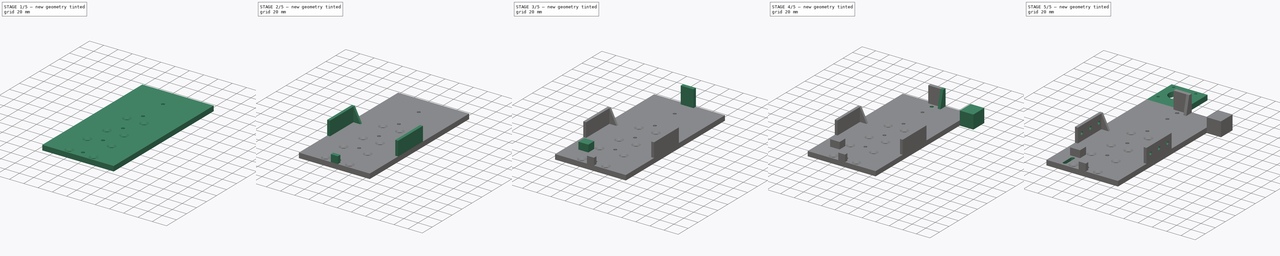
[diagram: build sequence overview — one tinted view per stage of 5, left to right]
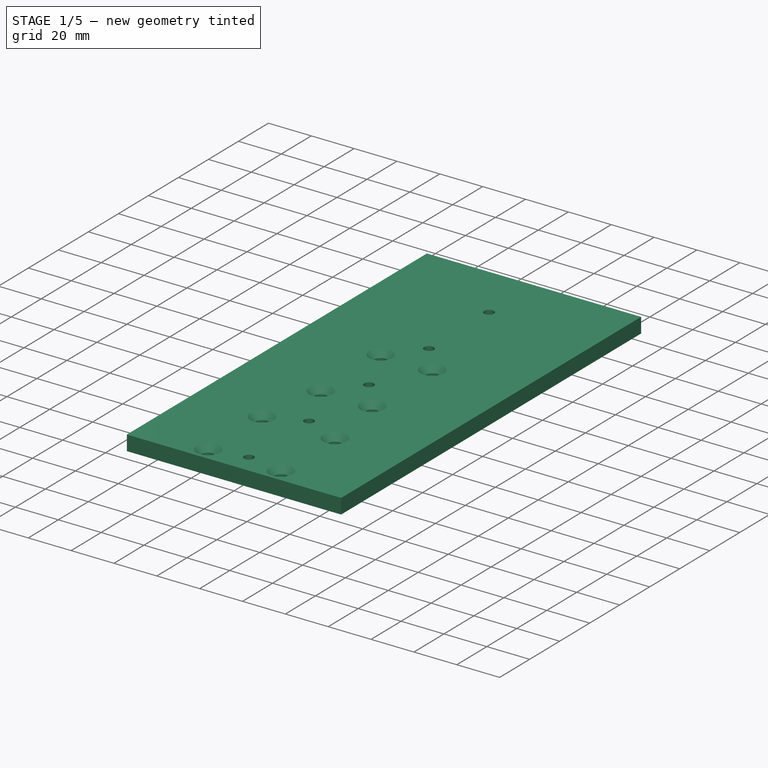
[diagram: stage 1 of 5 — iso view after this stage's code; geometry added in this stage tinted green]
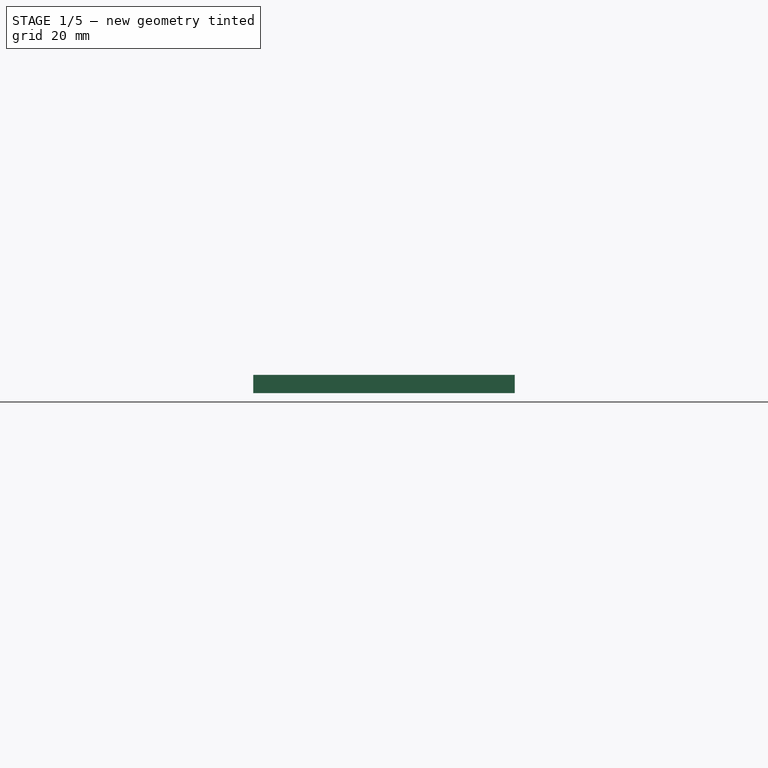
[diagram: stage 1 of 5 — front view after this stage's code; geometry added in this stage tinted green]
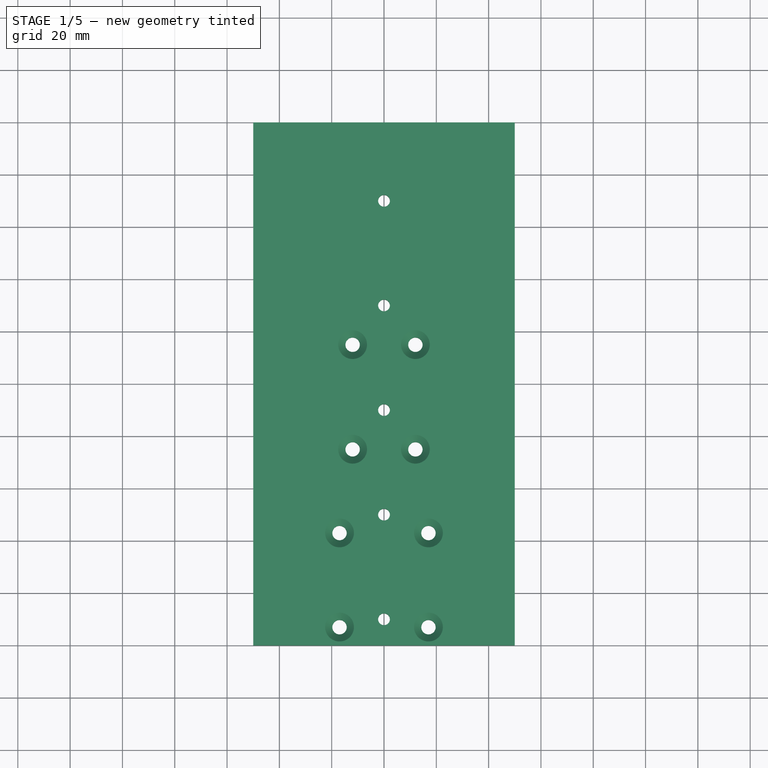
[diagram: stage 1 of 5 — top view after this stage's code; geometry added in this stage tinted green]
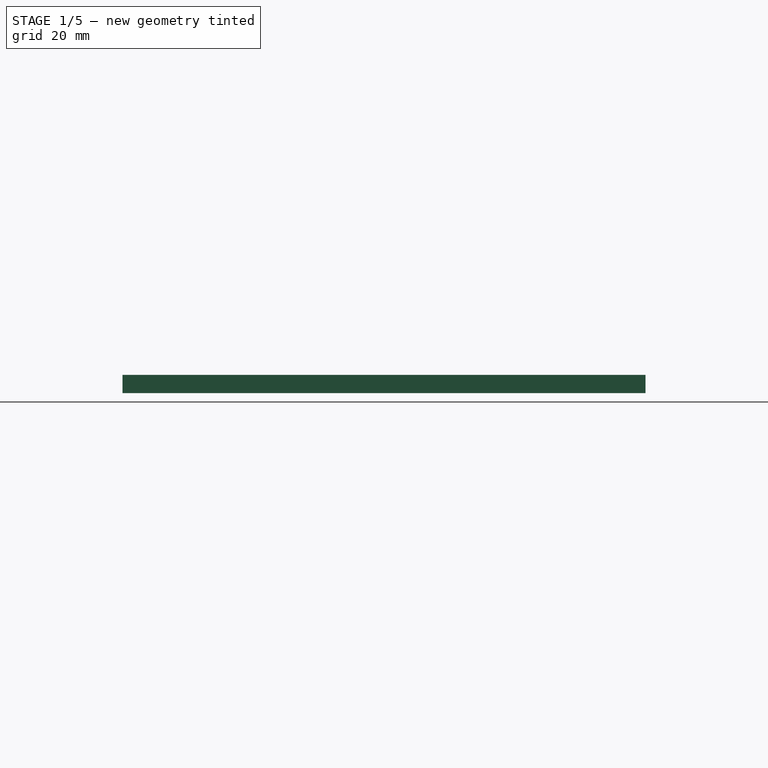
[diagram: stage 1 of 5 — right view after this stage's code; geometry added in this stage tinted green]
FCSTD DOCUMENT  (FreeCAD 0.20R29177 (Git))
Label: ZAxis_v2
License: All rights reserved
LicenseURL: http://en.wikipedia.org/wiki/All_rights_reserved
objects: Sketcher::SketchObject×16, PartDesign::Pad×10, PartDesign::Plane×9, PartDesign::Pocket×4, PartDesign::Hole×2, PartDesign::Body×1
note: 58 computed .brp shape members not serialized (recipe doc carries the construction recipe); baked Part::Feature solids carry a one-line shape summary decoded from their .brp

FEATURE [Sketcher::SketchObject] Sketch
  FullyConstrained = true
  MapMode = 5
  Support = -> [XY_Plane]
  sketch-geometry (4):
    g0: LineSegment StartX=-50 StartY=0 StartZ=0 EndX=50 EndY=0 EndZ=0
    g1: LineSegment StartX=50 StartY=0 StartZ=0 EndX=50 EndY=200 EndZ=0
    g2: LineSegment StartX=50 StartY=200 StartZ=0 EndX=-50 EndY=200 EndZ=0
    g3: LineSegment StartX=-50 StartY=200 StartZ=0 EndX=-50 EndY=0 EndZ=0
  constraints (12):
    c: Coincident(g0,g1)
    c: Coincident(g1,g2)
    c: Coincident(g2,g3)
    c: Coincident(g3,g0)
    c: Horizontal(g0)
    c: Horizontal(g2)
    c: Vertical(g1)
    c: Vertical(g3)
    c: PointOnObject(g0,g-1)
    c: DistanceY(g1,g1) = 200
    c: Distance(g0,g-2) = 50
    c: Distance(g0,g-1) = 50
FEATURE [PartDesign::Pad] Pad  label="Plate"
  Direction = (0,0,1)
  Length = 7
  Length2 = 10
  Profile = -> Sketch
  ReferenceAxis = -> Sketch [N_Axis]
  Type = 0
FEATURE [Sketcher::SketchObject] Sketch001
  FullyConstrained = false
  MapMode = 5
  Placement = pos=(0,0,7) rot=(0,0,1;0rad)
  Support = -> [Pad]
  sketch-geometry (10):
    g0: LineSegment StartX=-82.3871 StartY=25 StartZ=0 EndX=60.2439 EndY=25 EndZ=0
    g1: Circle CenterX=17 CenterY=7 CenterZ=0 NormalX=0 NormalY=0 NormalZ=1 AngleXU=0 Radius=2.7
    g2: Circle CenterX=17 CenterY=43 CenterZ=0 NormalX=0 NormalY=0 NormalZ=1 AngleXU=0 Radius=2.7
    g3: Circle CenterX=-17 CenterY=43 CenterZ=0 NormalX=0 NormalY=0 NormalZ=1 AngleXU=0 Radius=2.7
    g4: Circle CenterX=-17 CenterY=7 CenterZ=0 NormalX=0 NormalY=0 NormalZ=1 AngleXU=0 Radius=2.7
    g5: Circle CenterX=12 CenterY=115 CenterZ=0 NormalX=0 NormalY=0 NormalZ=1 AngleXU=0 Radius=2.7
    g6: Circle CenterX=12 CenterY=75 CenterZ=0 NormalX=0 NormalY=0 NormalZ=1 AngleXU=0 Radius=2.7
    g7: Circle CenterX=-12 CenterY=115 CenterZ=0 NormalX=0 NormalY=0 NormalZ=1 AngleXU=0 Radius=2.7
    g8: Circle CenterX=-12 CenterY=75 CenterZ=0 NormalX=0 NormalY=0 NormalZ=1 AngleXU=0 Radius=2.7
    g9: GeomPoint X=59.727 Y=120 Z=0
  constraints (25):
    c: Horizontal(g0)
    c: Block(g0)
    c: Distance(g0,g-1) = 25
    c: Distance(g2,g0) = 18
    c: Distance(g1,g0) = 18
    c: Distance(g4,g0) = 18
    c: Distance(g3,g0) = 18
    c: Diameter(g2) = 5.4
    c: Diameter(g1) = 5.4
    c: Diameter(g4) = 5.4
    c: Diameter(g3) = 5.4
    c: Distance(g2,g-2) = 17
    c: Distance(g1,g-2) = 17
    c: Diameter(g5) = 5.4
    c: Diameter(g6) = 5.4
    c: Diameter(g8) = 5.4
    c: Diameter(g7) = 5.4
    c: Distance(g6,g8) = 24
    c: Distance(g7,g5) = 24
    c: Distance(g8,g-2) = 12
    c: Distance(g7,g-2) = 12
    c: Distance(g2,g3) = 34
    c: Distance(g1,g4) = 34
    c: Distance(g6,g-1) = 75
    c: Distance(g5,g-1) = 115
FEATURE [PartDesign::Hole] Hole  label="Hole for SC16"
  BaseFeature = -> Pad
  CustomThreadClearance = 0
  Depth = 451.907
  DepthType = 1
  Diameter = 5.5
  DrillForDepth = false
  DrillPoint = 1
  DrillPointAngle = 118
  HoleCutCountersinkAngle = 90
  HoleCutCustomValues = false
  HoleCutDepth = 0
  HoleCutDiameter = 11
  HoleCutType = 4
  ModelThread = false
  Profile = -> Sketch001
  Tapered = false
  TaperedAngle = 90
  ThreadClass = 0
  ThreadDepth = 451.907
  ThreadDepthType = 0
  ThreadDirection = 0
  ThreadFit = 0
  ThreadSize = 13
  ThreadType = 2
  Threaded = false
  UseCustomThreadClearance = false
FEATURE [Sketcher::SketchObject] Sketch002
  FullyConstrained = false
  MapMode = 5
  Placement = pos=(0,0,7) rot=(0,0,1;0rad)
  Support = -> [Hole]
  sketch-geometry (5):
    g0: Circle CenterX=0 CenterY=10 CenterZ=0 NormalX=0 NormalY=0 NormalZ=1 AngleXU=0 Radius=2.1
    g1: Circle CenterX=0 CenterY=50 CenterZ=0 NormalX=0 NormalY=0 NormalZ=1 AngleXU=0 Radius=2.1
    g2: Circle CenterX=0 CenterY=90 CenterZ=0 NormalX=0 NormalY=0 NormalZ=1 AngleXU=0 Radius=2.1
    g3: Circle CenterX=0 CenterY=130 CenterZ=0 NormalX=0 NormalY=0 NormalZ=1 AngleXU=0 Radius=2.1
    g4: Circle CenterX=0 CenterY=170 CenterZ=0 NormalX=0 NormalY=0 NormalZ=1 AngleXU=0 Radius=2.1
  constraints (11):
    c: PointOnObject(g0,g-2)
    c: Distance(g0,g-1) = 10
    c: PointOnObject(g1,g-2)
    c: PointOnObject(g2,g-2)
    c: PointOnObject(g3,g-2)
    c: PointOnObject(g4,g-2)
    c: Diameter(g0) = 4.2
    c: Diameter(g1) = 4.2
    c: Diameter(g2) = 4.2
    c: Diameter(g3) = 4.2
    c: Diameter(g4) = 4.2
FEATURE [PartDesign::Hole] Hole001  label="Hole for linear rail"
  BaseFeature = -> Hole
  CustomThreadClearance = 0
  Depth = 451.907
  DepthType = 1
  Diameter = 4.5
  DrillForDepth = false
  DrillPoint = 1
  DrillPointAngle = 118
  HoleCutCountersinkAngle = 90
  HoleCutCustomValues = false
  HoleCutDepth = 0
  HoleCutDiameter = 6.1
  HoleCutType = 0
  ModelThread = false
  Profile = -> Sketch002
  Tapered = false
  TaperedAngle = 90
  ThreadClass = 0
  ThreadDepth = 451.907
  ThreadDepthType = 0
  ThreadDirection = 0
  ThreadFit = 0
  ThreadSize = 11
  ThreadType = 2
  Threaded = false
  UseCustomThreadClearance = false
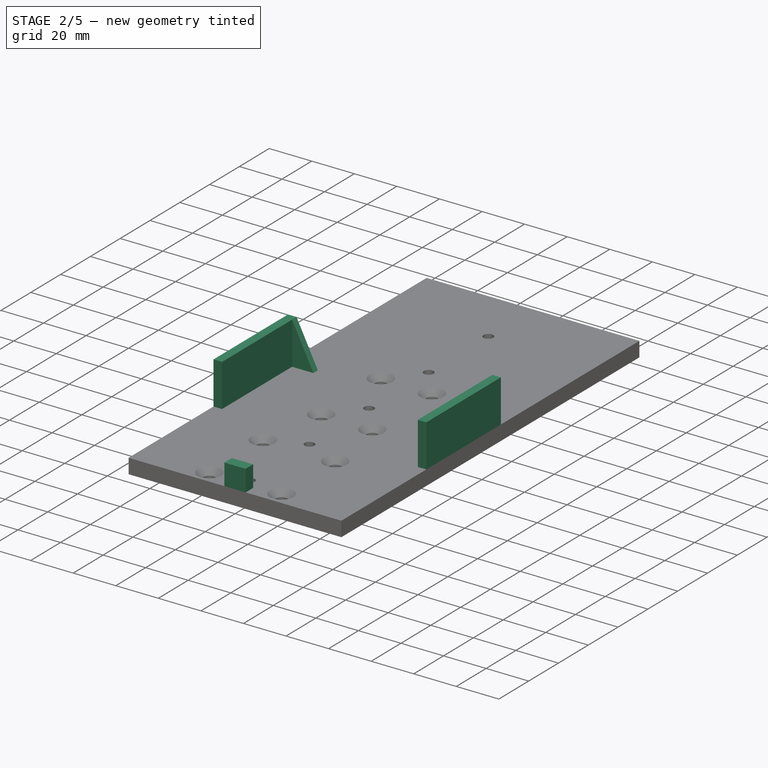
[diagram: stage 2 of 5 — iso view after this stage's code; geometry added in this stage tinted green]
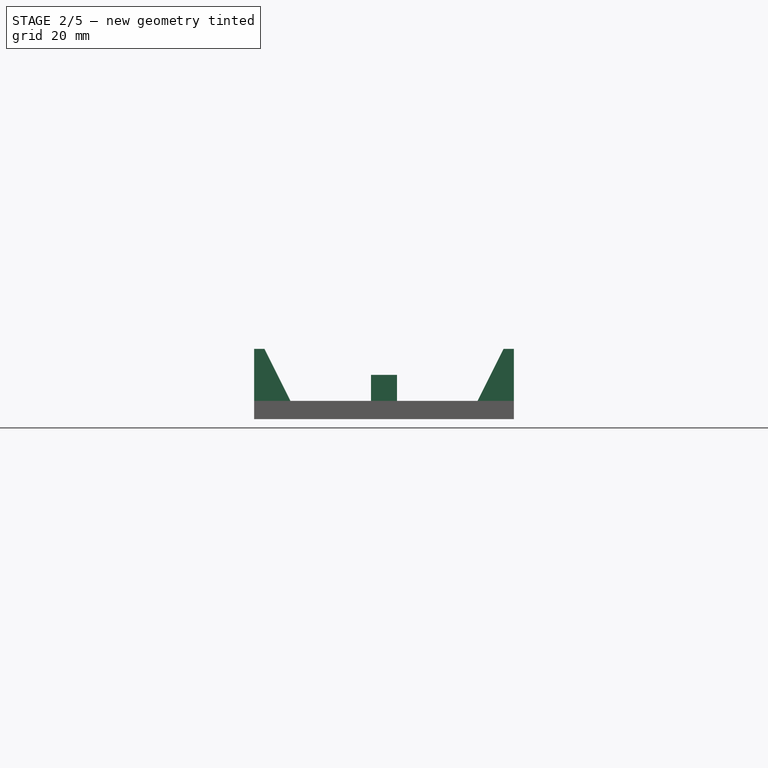
[diagram: stage 2 of 5 — front view after this stage's code; geometry added in this stage tinted green]
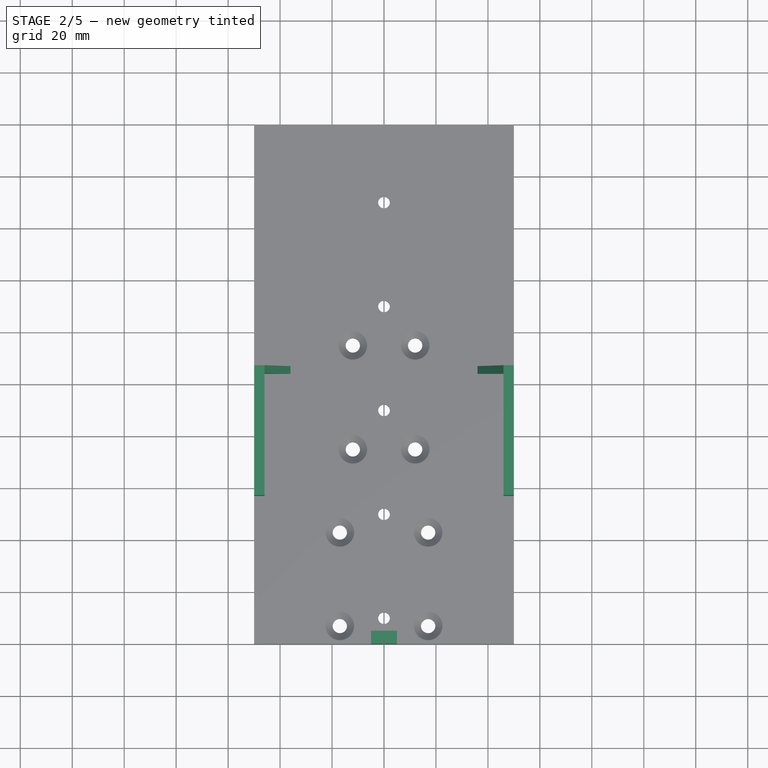
[diagram: stage 2 of 5 — top view after this stage's code; geometry added in this stage tinted green]
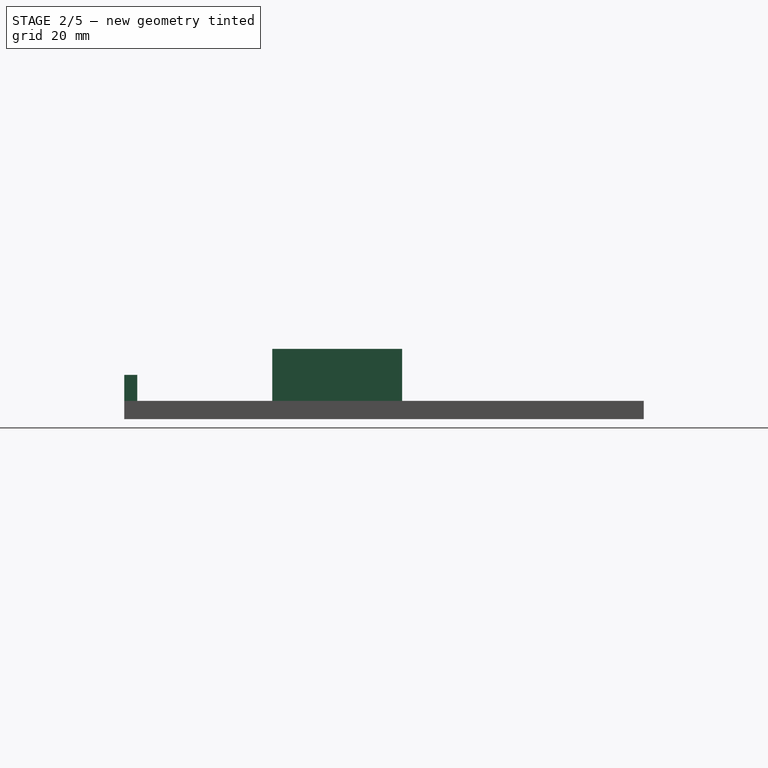
[diagram: stage 2 of 5 — right view after this stage's code; geometry added in this stage tinted green]
FEATURE [Sketcher::SketchObject] Sketch003
  FullyConstrained = false
  MapMode = 5
  Placement = pos=(0,0,7) rot=(0,0,1;0rad)
  Support = -> [Hole001]
  sketch-geometry (4):
    g0: LineSegment StartX=-5 StartY=5 StartZ=0 EndX=5 EndY=5 EndZ=0
    g1: LineSegment StartX=5 StartY=5 StartZ=0 EndX=5 EndY=2.93e-14 EndZ=0
    g2: LineSegment StartX=5 StartY=2.93e-14 StartZ=0 EndX=-5 EndY=2.93e-14 EndZ=0
    g3: LineSegment StartX=-5 StartY=2.93e-14 StartZ=0 EndX=-5 EndY=5 EndZ=0
  constraints (10):
    c: Coincident(g0,g1)
    c: Coincident(g1,g2)
    c: Coincident(g2,g3)
    c: Coincident(g3,g0)
    c: Horizontal(g0)
    c: Horizontal(g2)
    c: Vertical(g1)
    c: Vertical(g3)
    c: DistanceX(g0,g0) = 10
    c: DistanceY(g1,g1) = 5
FEATURE [PartDesign::Pad] Pad001  label="Rail holder"
  BaseFeature = -> Hole001
  Direction = (0,0,1)
  Length = 10
  Length2 = 10
  Profile = -> Sketch003
  ReferenceAxis = -> Sketch003 [N_Axis]
  Type = 0
FEATURE [PartDesign::Plane] DatumPlane
  Length = 156.332
  MapMode = 5
  Placement = pos=(0,0,7) rot=(0,0,1;0rad)
  ResizeMode = 0
  Width = 311.332
FEATURE [Sketcher::SketchObject] Sketch005
  FullyConstrained = false
  MapMode = 5
  Placement = pos=(0,0,7) rot=(0,0,1;0rad)
  Support = -> [DatumPlane]
  sketch-geometry (10):
    g0: LineSegment StartX=-50 StartY=107 StartZ=0 EndX=-46 EndY=107 EndZ=0
    g1: LineSegment StartX=-46 StartY=107 StartZ=0 EndX=-46 EndY=57 EndZ=0
    g2: LineSegment StartX=-46 StartY=57 StartZ=0 EndX=-50 EndY=57 EndZ=0
    g3: LineSegment StartX=-50 StartY=57 StartZ=0 EndX=-50 EndY=107 EndZ=0
    g4: LineSegment StartX=-50 StartY=107 StartZ=0 EndX=50 EndY=107 EndZ=0
    g5: LineSegment StartX=-50 StartY=57 StartZ=0 EndX=60 EndY=57 EndZ=0
    g6: LineSegment StartX=50 StartY=107 StartZ=0 EndX=46 EndY=107 EndZ=0
    g7: LineSegment StartX=46 StartY=107 StartZ=0 EndX=46 EndY=57 EndZ=0
    g8: LineSegment StartX=46 StartY=57 StartZ=0 EndX=50 EndY=57 EndZ=0
    g9: LineSegment StartX=50 StartY=57 StartZ=0 EndX=50 EndY=107 EndZ=0
  constraints (25):
    c: Coincident(g0,g1)
    c: Coincident(g1,g2)
    c: Coincident(g2,g3)
    c: Coincident(g3,g0)
    c: Horizontal(g0)
    c: Horizontal(g2)
    c: Vertical(g1)
    c: Vertical(g3)
    c: DistanceY(g1,g1) = 50
    c: DistanceX(g2,g2) = 4
    c: Coincident(g4,g0)
    c: Horizontal(g4)
    c: Coincident(g5,g2)
    c: Horizontal(g5)
    c: Coincident(g6,g7)
    c: Coincident(g7,g8)
    c: Coincident(g8,g9)
    c: Coincident(g9,g6)
    c: Horizontal(g6)
    c: Horizontal(g8)
    c: Vertical(g7)
    c: Vertical(g9)
    c: Coincident(g6,g4)
    c: PointOnObject(g7,g5)
    c: DistanceX(g6,g6) = 4
FEATURE [PartDesign::Pad] Pad002  label="Cam Holder"
  BaseFeature = -> Pad001
  Direction = (0,0,1)
  Length = 20
  Length2 = 10
  Profile = -> Sketch005
  ReferenceAxis = -> Sketch005 [N_Axis]
  Type = 0
FEATURE [PartDesign::Plane] DatumPlane004
  Length = 156.332
  MapMode = 5
  Placement = pos=(0,0,7) rot=(0,0,1;0rad)
  ResizeMode = 0
  Width = 311.332
FEATURE [PartDesign::Plane] DatumPlane005
  Length = 136.395
  MapMode = 5
  Placement = pos=(0,107,0) rot=(0,0.707107,0.707107;3.14159rad)
  ResizeMode = 0
  Width = 72.3951
FEATURE [Sketcher::SketchObject] Sketch017
  FullyConstrained = false
  MapMode = 5
  Placement = pos=(0,107,0) rot=(0,0.707107,0.707107;3.14159rad)
  Support = -> [DatumPlane005]
  sketch-geometry (6):
    g0: LineSegment StartX=46 StartY=7 StartZ=0 EndX=46 EndY=27 EndZ=0
    g1: LineSegment StartX=46 StartY=7 StartZ=0 EndX=36 EndY=7 EndZ=0
    g2: LineSegment StartX=36 StartY=7 StartZ=0 EndX=46 EndY=27 EndZ=0
    g3: LineSegment StartX=-46 StartY=27 StartZ=0 EndX=-46 EndY=7 EndZ=0
    g4: LineSegment StartX=-46 StartY=7 StartZ=0 EndX=-36 EndY=7 EndZ=0
    g5: LineSegment StartX=-36 StartY=7 StartZ=0 EndX=-46 EndY=27 EndZ=0
  constraints (12):
    c: Vertical(g0)
    c: Coincident(g1,g0)
    c: Horizontal(g1)
    c: DistanceX(g1,g1) = 10
    c: Coincident(g2,g1)
    c: Coincident(g2,g0)
    c: Vertical(g3)
    c: Coincident(g4,g3)
    c: Horizontal(g4)
    c: DistanceX(g4,g4) = 10
    c: Coincident(g5,g4)
    c: Coincident(g5,g3)
FEATURE [PartDesign::Pad] Pad009  label="Tringle cam holder_1"
  BaseFeature = -> Pad002
  Direction = (0,1,-2e-16)
  Length = 3
  Length2 = 10
  Profile = -> Sketch017
  ReferenceAxis = -> Sketch017 [N_Axis]
  Reversed = true
  Type = 0
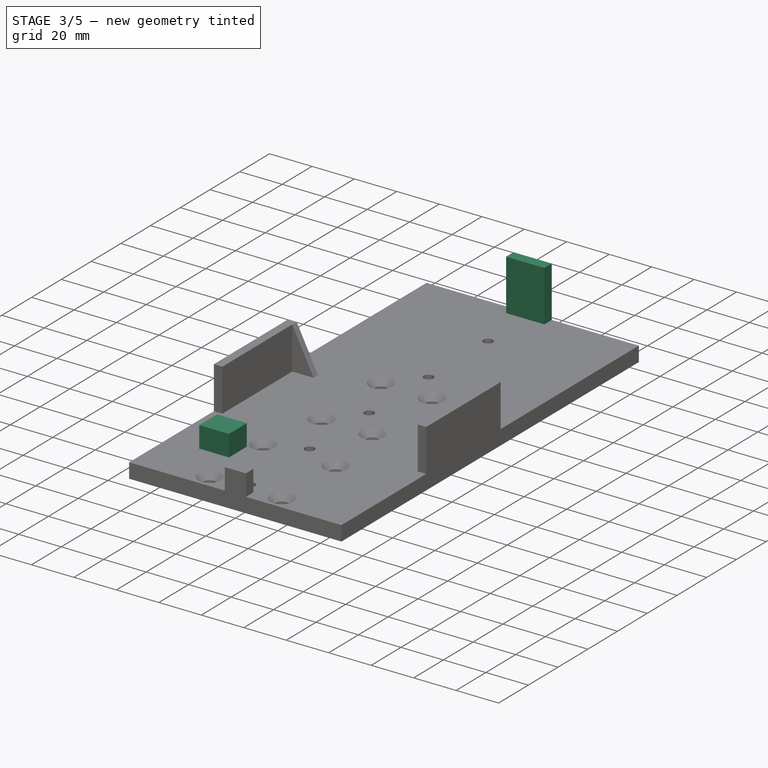
[diagram: stage 3 of 5 — iso view after this stage's code; geometry added in this stage tinted green]
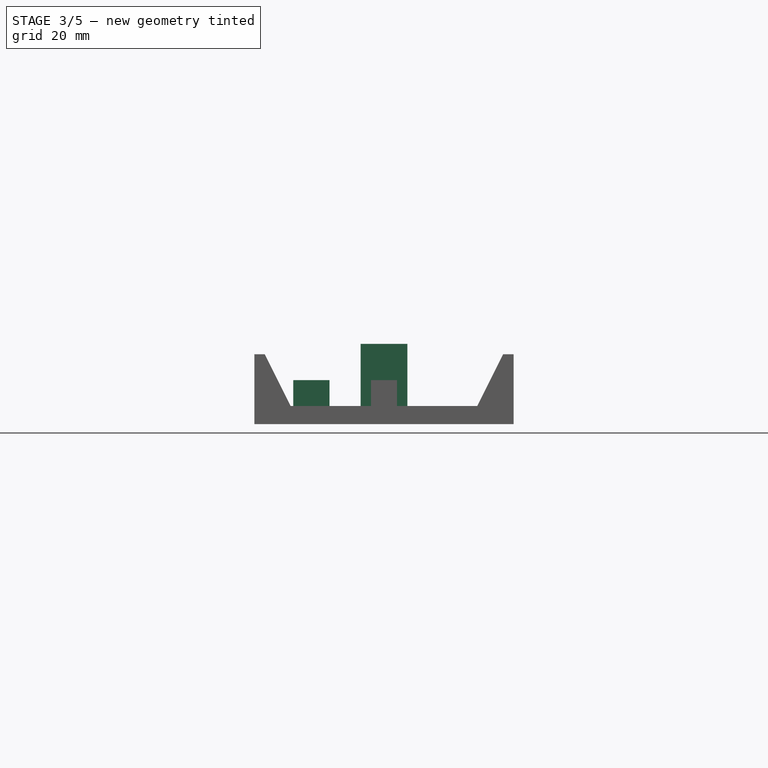
[diagram: stage 3 of 5 — front view after this stage's code; geometry added in this stage tinted green]
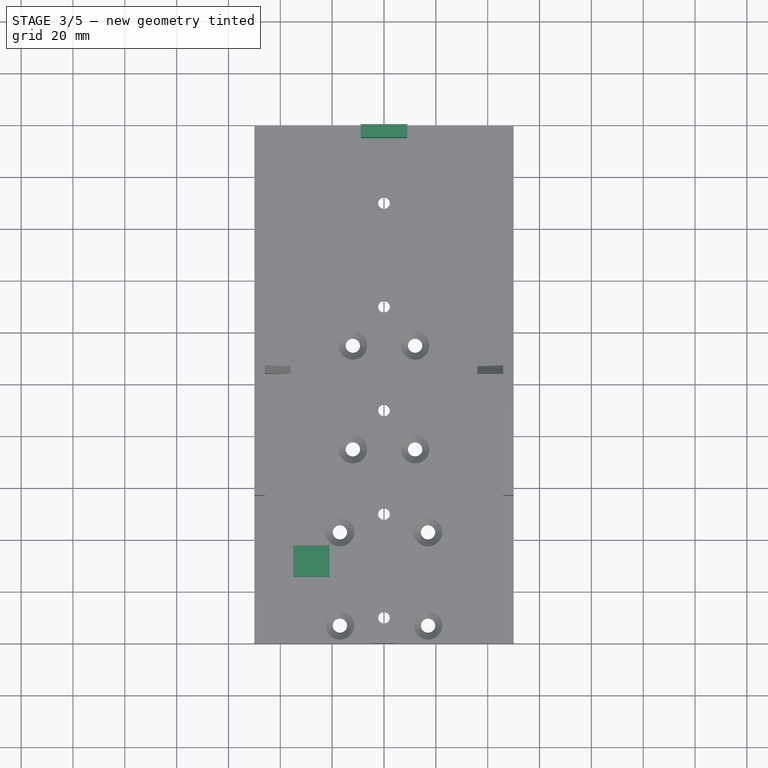
[diagram: stage 3 of 5 — top view after this stage's code; geometry added in this stage tinted green]
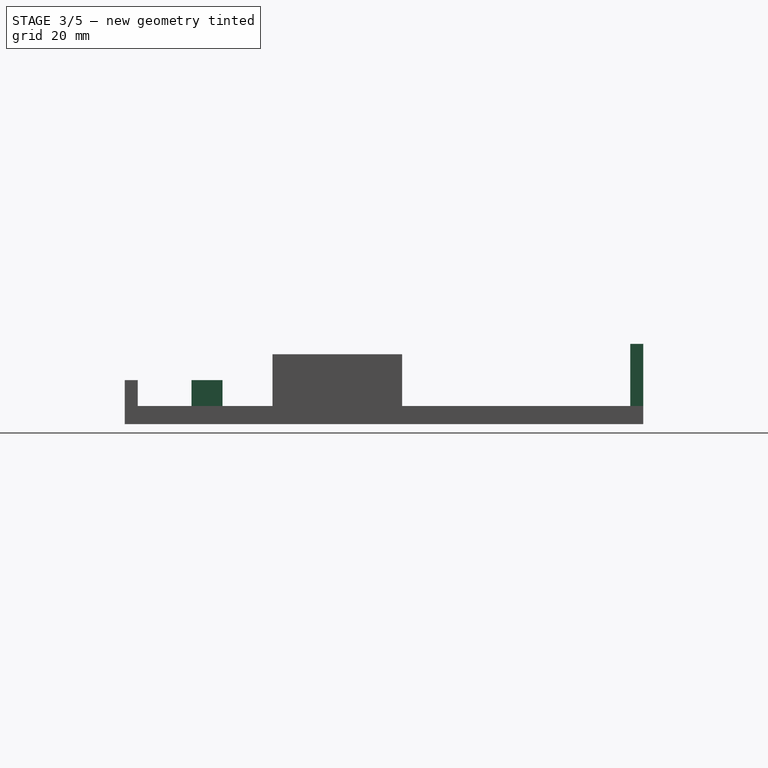
[diagram: stage 3 of 5 — right view after this stage's code; geometry added in this stage tinted green]
FEATURE [PartDesign::Plane] DatumPlane006
  Length = 136.395
  MapMode = 5
  Placement = pos=(0,107,0) rot=(0,0.707107,0.707107;3.14159rad)
  ResizeMode = 0
  Support = -> [Pad009]
  Width = 72.3951
FEATURE [Sketcher::SketchObject] Sketch018
  FullyConstrained = false
  MapMode = 5
  Placement = pos=(0,107,0) rot=(0,0.707107,0.707107;3.14159rad)
  Support = -> [DatumPlane006]
  sketch-geometry (6):
    g0: LineSegment StartX=-46 StartY=7 StartZ=0 EndX=-46 EndY=27 EndZ=0
    g1: LineSegment StartX=-46 StartY=7 StartZ=0 EndX=-36 EndY=7 EndZ=0
    g2: LineSegment StartX=-36 StartY=7 StartZ=0 EndX=-46 EndY=27 EndZ=0
    g3: LineSegment StartX=46 StartY=7 StartZ=0 EndX=46 EndY=26.6799 EndZ=0
    g4: LineSegment StartX=46 StartY=7 StartZ=0 EndX=36 EndY=7 EndZ=0
    g5: LineSegment StartX=36 StartY=7 StartZ=0 EndX=46 EndY=26.6799 EndZ=0
  constraints (12):
    c: Vertical(g0)
    c: Coincident(g1,g0)
    c: Horizontal(g1)
    c: Coincident(g2,g1)
    c: Coincident(g2,g0)
    c: Vertical(g3)
    c: Coincident(g4,g3)
    c: Horizontal(g4)
    c: Coincident(g5,g4)
    c: Coincident(g5,g3)
    c: DistanceX(g1,g1) = 10
    c: DistanceX(g4,g4) = 10
FEATURE [PartDesign::Pad] Pad010  label="Tringle cam holder_2"
  BaseFeature = -> Pad009
  Direction = (0,1,-2e-16)
  Length = 3
  Length2 = 10
  Profile = -> Sketch018
  ReferenceAxis = -> Sketch018 [N_Axis]
  Reversed = true
  Type = 0
FEATURE [Sketcher::SketchObject] Sketch019
  FullyConstrained = false
  MapMode = 5
  Placement = pos=(0,0,7) rot=(0,0,1;0rad)
  Support = -> [Pad010]
  sketch-geometry (4):
    g0: LineSegment StartX=-35 StartY=25.7172 StartZ=0 EndX=-21.0067 EndY=25.7172 EndZ=0
    g1: LineSegment StartX=-21.0067 StartY=25.7172 StartZ=0 EndX=-21.0067 EndY=37.7172 EndZ=0
    g2: LineSegment StartX=-21.0067 StartY=37.7172 StartZ=0 EndX=-35 EndY=37.7172 EndZ=0
    g3: LineSegment StartX=-35 StartY=37.7172 StartZ=0 EndX=-35 EndY=25.7172 EndZ=0
  constraints (9):
    c: Coincident(g0,g1)
    c: Coincident(g1,g2)
    c: Coincident(g2,g3)
    c: Coincident(g3,g0)
    c: Horizontal(g0)
    c: Horizontal(g2)
    c: Vertical(g1)
    c: Vertical(g3)
    c: DistanceY(g1,g1) = 12
FEATURE [PartDesign::Pad] Pad011
  BaseFeature = -> Pad010
  Direction = (0,0,1)
  Length = 10
  Length2 = 10
  Profile = -> Sketch019
  ReferenceAxis = -> Sketch019 [N_Axis]
  Type = 0
FEATURE [PartDesign::Plane] DatumPlane007
  Length = 136.395
  MapMode = 5
  Placement = pos=(0,25.7172,0) rot=(1,0,0;1.5708rad)
  ResizeMode = 0
  Support = -> [Pad011]
  Width = 72.3951
FEATURE [Sketcher::SketchObject] Sketch020
  FullyConstrained = false
  MapMode = 5
  Placement = pos=(0,25.7172,0) rot=(1,0,0;1.5708rad)
  Support = -> [DatumPlane007]
  sketch-geometry (2):
    g0: Circle CenterX=28 CenterY=12 CenterZ=0 NormalX=0 NormalY=0 NormalZ=1 AngleXU=0 Radius=2
    g1: GeomPoint X=21.1094 Y=10.7671 Z=0
  constraints (1):
    c: Diameter(g0) = 4
FEATURE [PartDesign::Pocket] Pocket001
  BaseFeature = -> Pad011
  Direction = (0,1,-2e-16)
  Length = 14
  Length2 = 5
  Profile = -> Sketch020
  ReferenceAxis = -> Sketch020 [N_Axis]
  Type = 0
FEATURE [Sketcher::SketchObject] Sketch022
  FullyConstrained = true
  MapMode = 5
  Placement = pos=(0,200,0) rot=(0,0.707107,0.707107;3.14159rad)
  sketch-geometry (4):
    g0: LineSegment StartX=-9 StartY=0 StartZ=0 EndX=9 EndY=0 EndZ=0
    g1: LineSegment StartX=9 StartY=0 StartZ=0 EndX=9 EndY=31 EndZ=0
    g2: LineSegment StartX=9 StartY=31 StartZ=0 EndX=-9 EndY=31 EndZ=0
    g3: LineSegment StartX=-9 StartY=31 StartZ=0 EndX=-9 EndY=0 EndZ=0
  constraints (12):
    c: Coincident(g0,g1)
    c: Coincident(g1,g2)
    c: Coincident(g2,g3)
    c: Coincident(g3,g0)
    c: Horizontal(g0)
    c: Horizontal(g2)
    c: Vertical(g1)
    c: Vertical(g3)
    c: PointOnObject(g0,g-1)
    c: DistanceY(g1,g1) = 31
    c: DistanceX(g0,g0) = 18
    c: Distance(g0,g-2) = 9
FEATURE [PartDesign::Pad] Pad012  label="Sensor holder"
  BaseFeature = -> Pocket001
  Direction = (0,1,-2e-16)
  Length = 5
  Length2 = 10
  Profile = -> Sketch022
  ReferenceAxis = -> Sketch022 [N_Axis]
  Reversed = true
  Type = 0
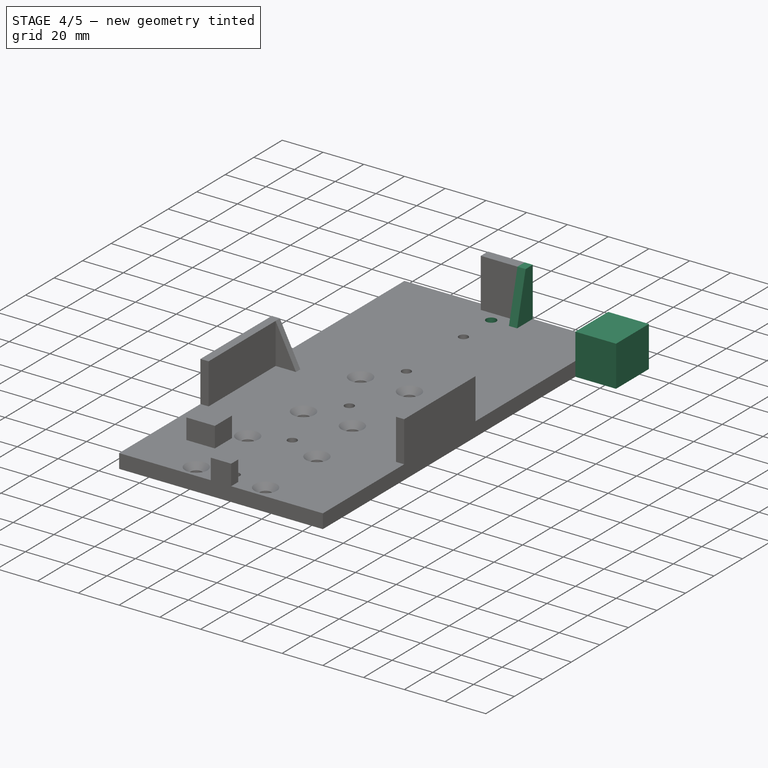
[diagram: stage 4 of 5 — iso view after this stage's code; geometry added in this stage tinted green]
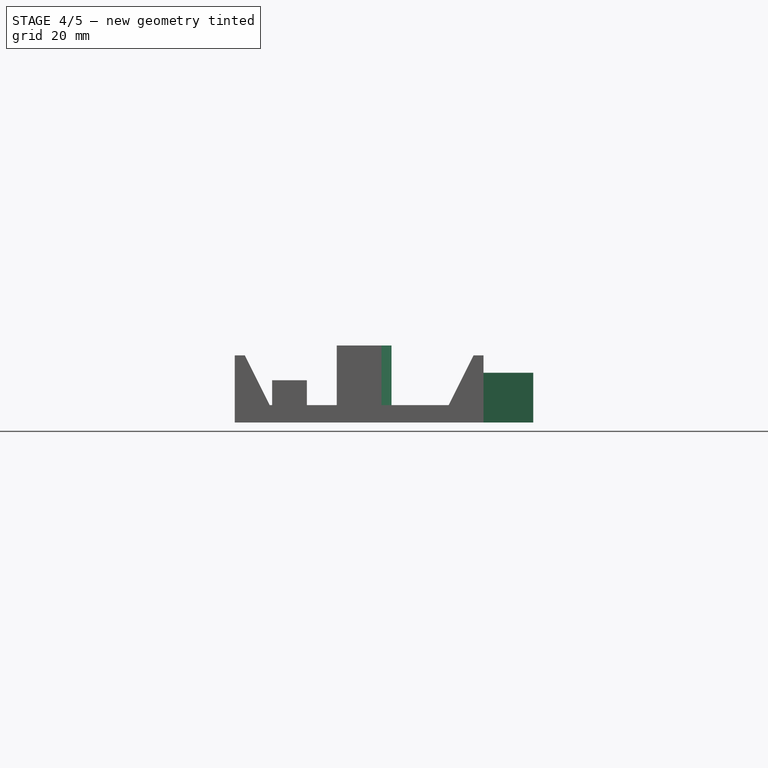
[diagram: stage 4 of 5 — front view after this stage's code; geometry added in this stage tinted green]
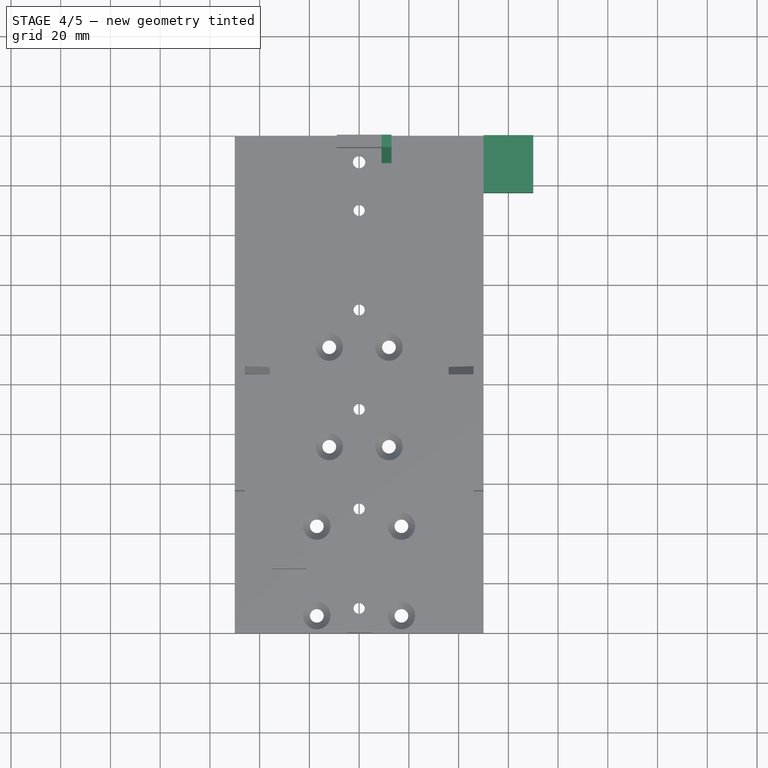
[diagram: stage 4 of 5 — top view after this stage's code; geometry added in this stage tinted green]
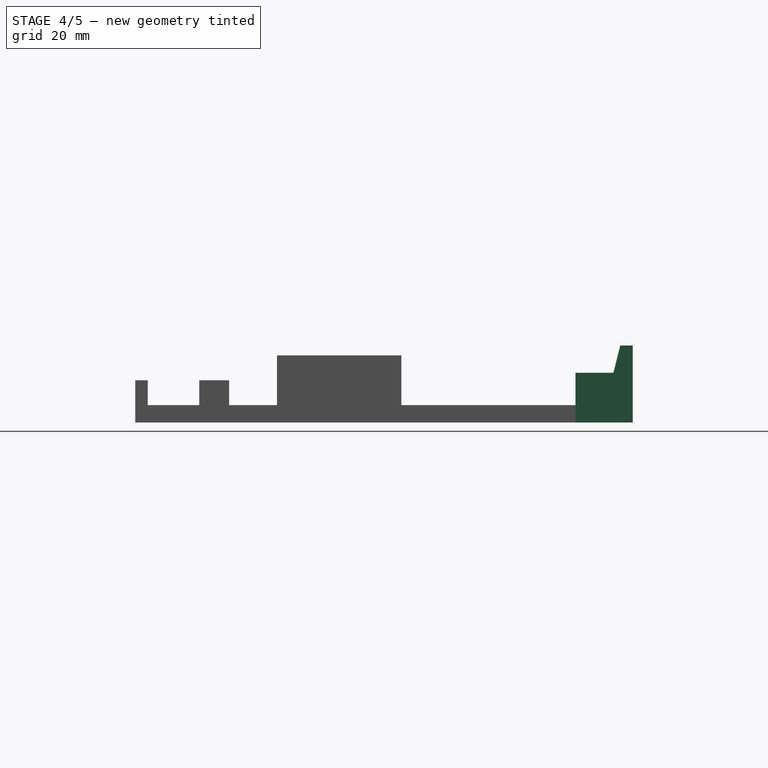
[diagram: stage 4 of 5 — right view after this stage's code; geometry added in this stage tinted green]
FEATURE [PartDesign::Plane] DatumPlane010
  Length = 299.819
  MapMode = 5
  Placement = pos=(9,0,0) rot=(0.57735,0.57735,0.57735;2.0944rad)
  ResizeMode = 0
  Support = -> [Pad012]
  Width = 80.8193
FEATURE [Sketcher::SketchObject] Sketch023
  FullyConstrained = false
  MapMode = 5
  Placement = pos=(9,0,0) rot=(0.57735,0.57735,0.57735;2.0944rad)
  Support = -> [DatumPlane010]
  sketch-geometry (4):
    g0: LineSegment StartX=200 StartY=7 StartZ=0 EndX=189 EndY=7 EndZ=0
    g1: LineSegment StartX=200 StartY=7 StartZ=0 EndX=200 EndY=31 EndZ=0
    g2: LineSegment StartX=200 StartY=31 StartZ=0 EndX=195 EndY=31 EndZ=0
    g3: LineSegment StartX=195 StartY=31 StartZ=0 EndX=189 EndY=7 EndZ=0
  constraints (7):
    c: Horizontal(g0)
    c: Coincident(g1,g0)
    c: Vertical(g1)
    c: Coincident(g2,g1)
    c: Horizontal(g2)
    c: Coincident(g3,g2)
    c: Coincident(g3,g0)
FEATURE [PartDesign::Pad] Pad013
  BaseFeature = -> Pad012
  Direction = (1,0,0)
  Length = 4
  Length2 = 10
  Profile = -> Sketch023
  ReferenceAxis = -> Sketch023 [N_Axis]
  Type = 0
FEATURE [Sketcher::SketchObject] Sketch024
  FullyConstrained = false
  MapMode = 5
  Placement = pos=(0,0,7) rot=(0,0,1;0rad)
  Support = -> [Pad013]
  sketch-geometry (1):
    g0: Circle CenterX=0 CenterY=189.429 CenterZ=0 NormalX=0 NormalY=0 NormalZ=1 AngleXU=0 Radius=2.5
  constraints (1):
    c: Diameter(g0) = 5
FEATURE [PartDesign::Pocket] Pocket003
  BaseFeature = -> Pad013
  Direction = (0,0,-1)
  Length = 7
  Length2 = 5
  Profile = -> Sketch024
  ReferenceAxis = -> Sketch024 [N_Axis]
  Type = 0
FEATURE [PartDesign::Plane] DatumPlane011
  Length = 299.819
  MapMode = 5
  Placement = pos=(50,0,0) rot=(0.57735,0.57735,0.57735;2.0944rad)
  ResizeMode = 0
  Width = 80.8193
FEATURE [Sketcher::SketchObject] Sketch026
  FullyConstrained = false
  MapMode = 5
  Placement = pos=(50,0,0) rot=(0.57735,0.57735,0.57735;2.0944rad)
  Support = -> [DatumPlane011]
  sketch-geometry (4):
    g0: LineSegment StartX=200 StartY=0 StartZ=0 EndX=177 EndY=0 EndZ=0
    g1: LineSegment StartX=177 StartY=0 StartZ=0 EndX=177 EndY=20 EndZ=0
    g2: LineSegment StartX=177 StartY=20 StartZ=0 EndX=200 EndY=20 EndZ=0
    g3: LineSegment StartX=200 StartY=20 StartZ=0 EndX=200 EndY=0 EndZ=0
  constraints (10):
    c: Coincident(g0,g1)
    c: Coincident(g1,g2)
    c: Coincident(g2,g3)
    c: Coincident(g3,g0)
    c: Horizontal(g0)
    c: Horizontal(g2)
    c: Vertical(g1)
    c: Vertical(g3)
    c: DistanceY(g3,g3) = 20
    c: DistanceX(g0,g0) = 23
FEATURE [PartDesign::Pad] Pad014  label="Vacum valve holder"
  BaseFeature = -> Pocket003
  Direction = (1,0,0)
  Length = 20
  Length2 = 10
  Profile = -> Sketch026
  ReferenceAxis = -> Sketch026 [N_Axis]
  Type = 0
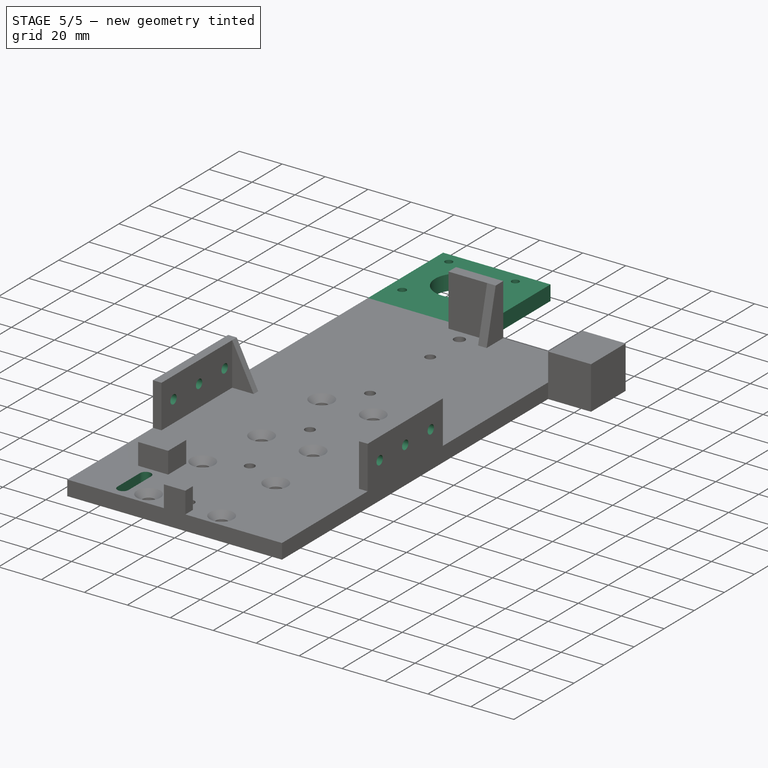
[diagram: stage 5 of 5 — iso view after this stage's code; geometry added in this stage tinted green]
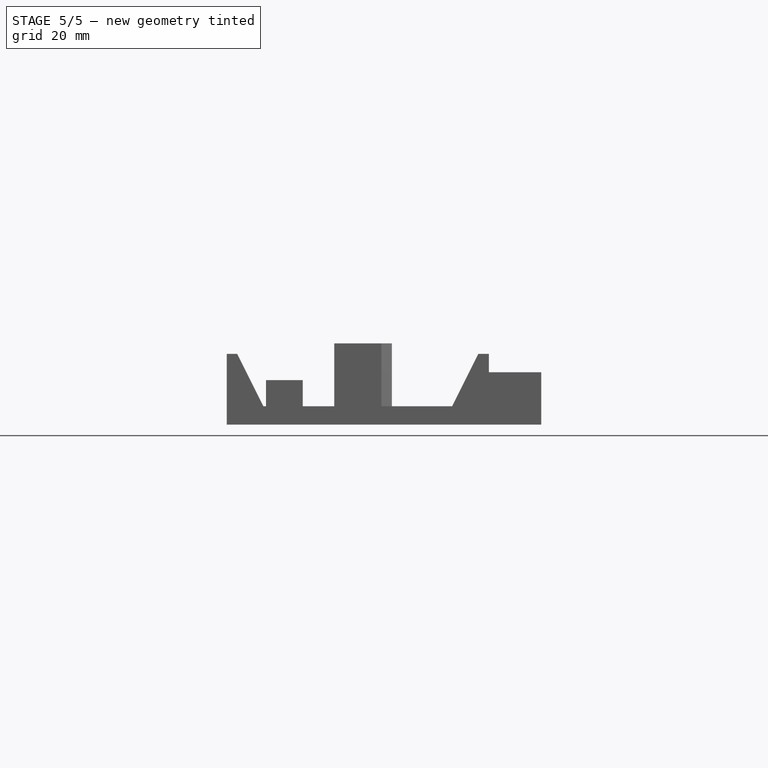
[diagram: stage 5 of 5 — front view after this stage's code; geometry added in this stage tinted green]
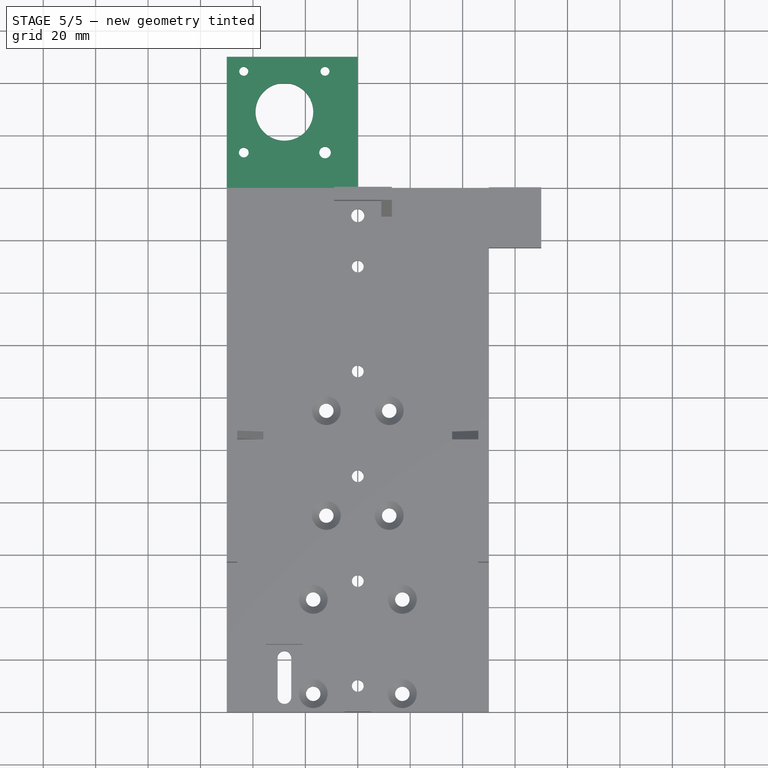
[diagram: stage 5 of 5 — top view after this stage's code; geometry added in this stage tinted green]
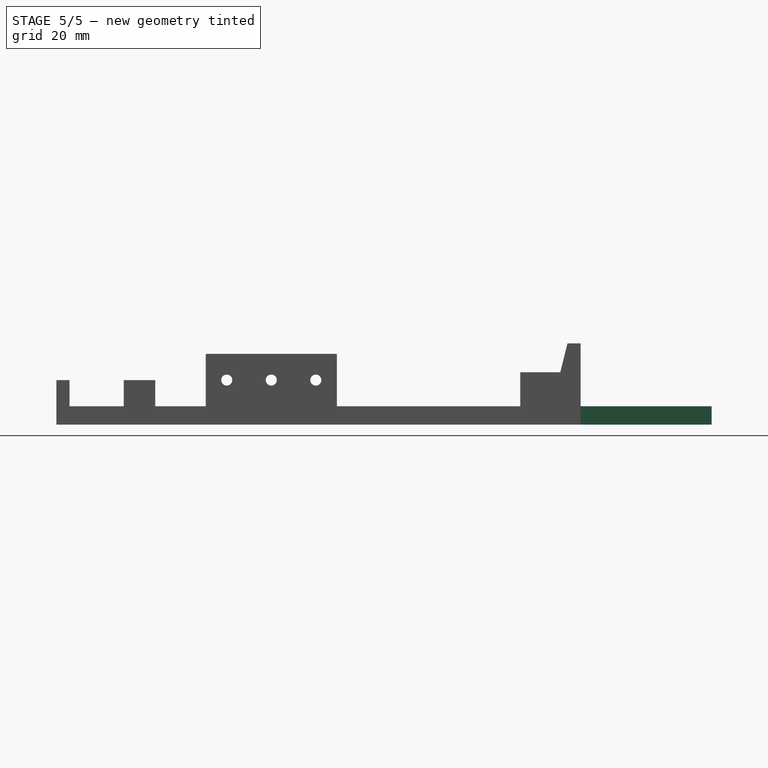
[diagram: stage 5 of 5 — right view after this stage's code; geometry added in this stage tinted green]
FEATURE [PartDesign::Plane] DatumPlane012
  Length = 299.819
  MapMode = 5
  Placement = pos=(-50,0,0) rot=(0.57735,-0.57735,-0.57735;2.0944rad)
  ResizeMode = 0
  Width = 80.8193
FEATURE [Sketcher::SketchObject] Sketch034
  FullyConstrained = false
  MapMode = 5
  Placement = pos=(-50,0,0) rot=(0.57735,-0.57735,-0.57735;2.0944rad)
  Support = -> [DatumPlane012]
  sketch-geometry (3):
    g0: Circle CenterX=-99 CenterY=17 CenterZ=0 NormalX=0 NormalY=0 NormalZ=1 AngleXU=0 Radius=2.1
    g1: Circle CenterX=-82 CenterY=17 CenterZ=0 NormalX=0 NormalY=0 NormalZ=1 AngleXU=0 Radius=2.1
    g2: Circle CenterX=-65 CenterY=17 CenterZ=0 NormalX=0 NormalY=0 NormalZ=1 AngleXU=0 Radius=2.1
  constraints (6):
    c: Diameter(g2) = 4.2
    c: Diameter(g1) = 4.2
    c: Diameter(g0) = 4.2
    c: Distance(g0,g2) = 34
    c: Block(g0)
    c: Distance(g0,g1) = 17
FEATURE [PartDesign::Pocket] Pocket008  label="cam hole"
  BaseFeature = -> Pad014
  Direction = (1,0,0)
  Length = 120
  Length2 = 5
  Profile = -> Sketch034
  ReferenceAxis = -> Sketch034 [N_Axis]
  Type = 0
FEATURE [PartDesign::Plane] DatumPlane013
  Length = 156.332
  MapMode = 5
  Placement = pos=(0,0,7) rot=(0,0,1;0rad)
  ResizeMode = 0
  Support = -> [Pocket008]
  Width = 311.332
FEATURE [Sketcher::SketchObject] Sketch035
  FullyConstrained = false
  MapMode = 5
  Placement = pos=(0,0,7) rot=(0,0,1;0rad)
  Support = -> [DatumPlane013]
  sketch-geometry (11):
    g0: LineSegment StartX=-50 StartY=200 StartZ=0 EndX=0 EndY=200 EndZ=0
    g1: LineSegment StartX=0 StartY=200 StartZ=0 EndX=0 EndY=250 EndZ=0
    g2: LineSegment StartX=0 StartY=250 StartZ=0 EndX=-50 EndY=250 EndZ=0
    g3: LineSegment StartX=-50 StartY=250 StartZ=0 EndX=-50 EndY=200 EndZ=0
    g4: Circle CenterX=-28 CenterY=229 CenterZ=0 NormalX=0 NormalY=0 NormalZ=1 AngleXU=0 Radius=11
    g5: LineSegment StartX=-28 StartY=250 StartZ=0 EndX=-28 EndY=198.689 EndZ=0
    g6: LineSegment StartX=-50 StartY=229 StartZ=0 EndX=0 EndY=229 EndZ=0
    g7: Circle CenterX=-43.5 CenterY=244.5 CenterZ=0 NormalX=0 NormalY=0 NormalZ=1 AngleXU=0 Radius=1.72055
    g8: Circle CenterX=-12.5 CenterY=244.5 CenterZ=0 NormalX=0 NormalY=0 NormalZ=1 AngleXU=0 Radius=1.71486
    g9: Circle CenterX=-12.5 CenterY=213.5 CenterZ=0 NormalX=0 NormalY=0 NormalZ=1 AngleXU=0 Radius=2.21175
    g10: Circle CenterX=-43.5 CenterY=213.5 CenterZ=0 NormalX=0 NormalY=0 NormalZ=1 AngleXU=0 Radius=1.86835
  constraints (27):
    c: Coincident(g0,g1)
    c: Coincident(g1,g2)
    c: Coincident(g2,g3)
    c: Coincident(g3,g0)
    c: Horizontal(g0)
    c: Horizontal(g2)
    c: Vertical(g1)
    c: Vertical(g3)
    c: DistanceX(g0,g0) = 50
    c: DistanceY(g3,g3) = 50
    c: Distance(g4,g1) = 28
    c: Diameter(g4) = 22
    c: PointOnObject(g5,g2)
    c: Vertical(g5)
    c: PointOnObject(g6,g3)
    c: PointOnObject(g6,g1)
    c: Horizontal(g6)
    c: Block(g6)
    c: Block(g5)
    c: Distance(g9,g5) = 15.5
    c: Distance(g10,g5) = 15.5
    c: Distance(g10,g6) = 15.5
    c: Distance(g9,g6) = 15.5
    c: Distance(g8,g6) = 15.5
    c: Distance(g7,g6) = 15.5
    c: Distance(g7,g5) = 15.5
    c: Distance(g8,g5) = 15.5
FEATURE [PartDesign::Pad] Pad015
  BaseFeature = -> Pocket008
  Direction = (0,0,1)
  Length = 7
  Length2 = 10
  Profile = -> Sketch035
  ReferenceAxis = -> Sketch035 [N_Axis]
  Reversed = true
  Type = 0
FEATURE [Sketcher::SketchObject] Sketch036
  FullyConstrained = false
  MapMode = 5
  Placement = pos=(0,0,7) rot=(0,0,1;0rad)
  Support = -> [DatumPlane013]
  sketch-geometry (4):
    g0: ArcOfCircle CenterX=-28 CenterY=20.7023 CenterZ=0 NormalX=0 NormalY=0 NormalZ=1 AngleXU=0 Radius=2.6 StartAngle=0 EndAngle=3.14159
    g1: ArcOfCircle CenterX=-28 CenterY=5.70231 CenterZ=0 NormalX=0 NormalY=0 NormalZ=1 AngleXU=0 Radius=2.6 StartAngle=3.14159 EndAngle=6.28319
    g2: LineSegment StartX=-30.6 StartY=20.7023 StartZ=0 EndX=-30.6 EndY=5.70231 EndZ=0
    g3: LineSegment StartX=-25.4 StartY=5.70231 StartZ=0 EndX=-25.4 EndY=20.7023 EndZ=0
  constraints (9):
    c: Tangent(g0,g2) = -1.5708
    c: Tangent(g2,g1) = -1.5708
    c: Tangent(g1,g3) = -1.5708
    c: Tangent(g3,g0) = -1.5708
    c: Equal(g0,g1)
    c: Vertical(g2)
    c: Distance(g0,g-2) = 28
    c: Diameter(g0) = 5.2
    c: DistanceY(g3,g3) = 15
FEATURE [PartDesign::Pocket] Pocket
  BaseFeature = -> Pad015
  Direction = (0,0,-1)
  Length = 7
  Length2 = 5
  Profile = -> Sketch036
  ReferenceAxis = -> Sketch036 [N_Axis]
  Type = 0
FEATURE [PartDesign::Body] Body
  Group = -> [Sketch,Pad,Sketch001,Hole,Sketch002,Hole001,Sketch003,Pad001,DatumPlane,Sketch005,Pad002,DatumPlane004,DatumPlane005,Sketch017,Pad009,DatumPlane006,Sketch018,Pad010,Sketch019,Pad011,DatumPlane007,Sketch020,Pocket001,Sketch022,Pad012,DatumPlane010,Sketch023,Pad013,Sketch024,Pocket003,DatumPlane011,Sketch026,Pad014,DatumPlane012,Sketch034,Pocket008,DatumPlane013,Sketch035,Pad015,Sketch036,Pocket]
  Origin = -> Origin
  Tip = -> Pocket
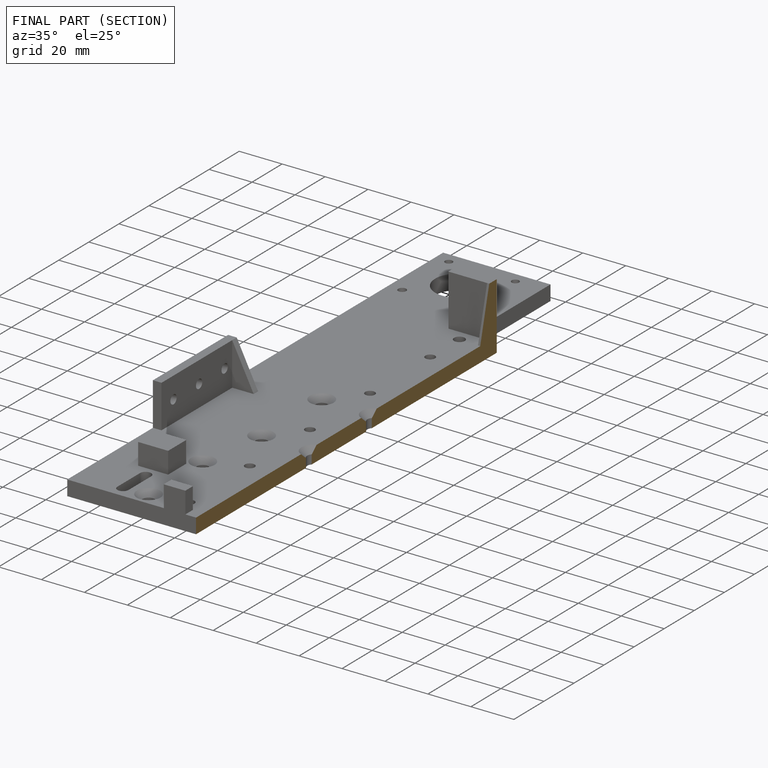
[diagram: finished part — half-section view (interior)]
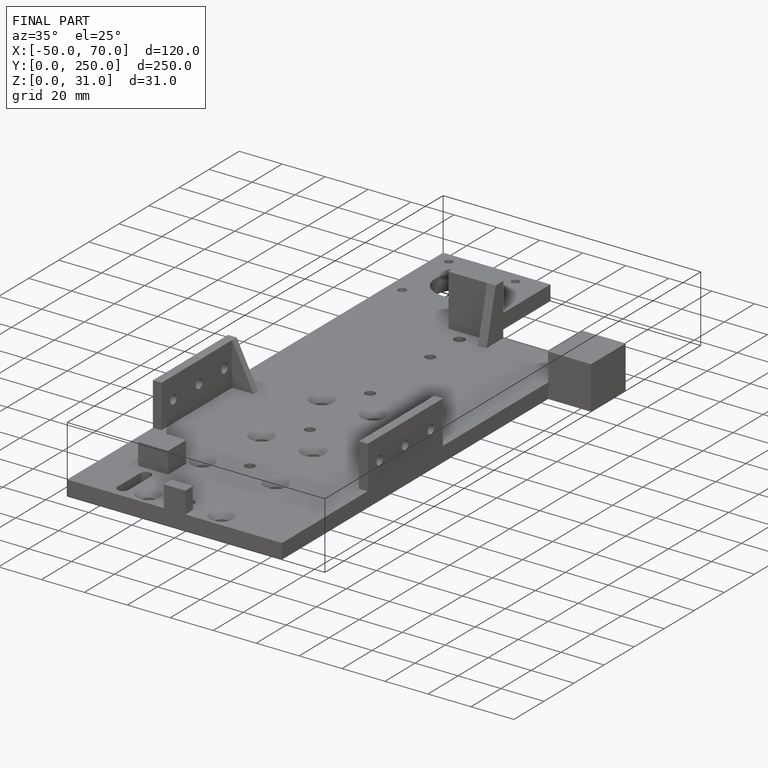
[diagram: finished part — iso view with bounding-box wireframe]
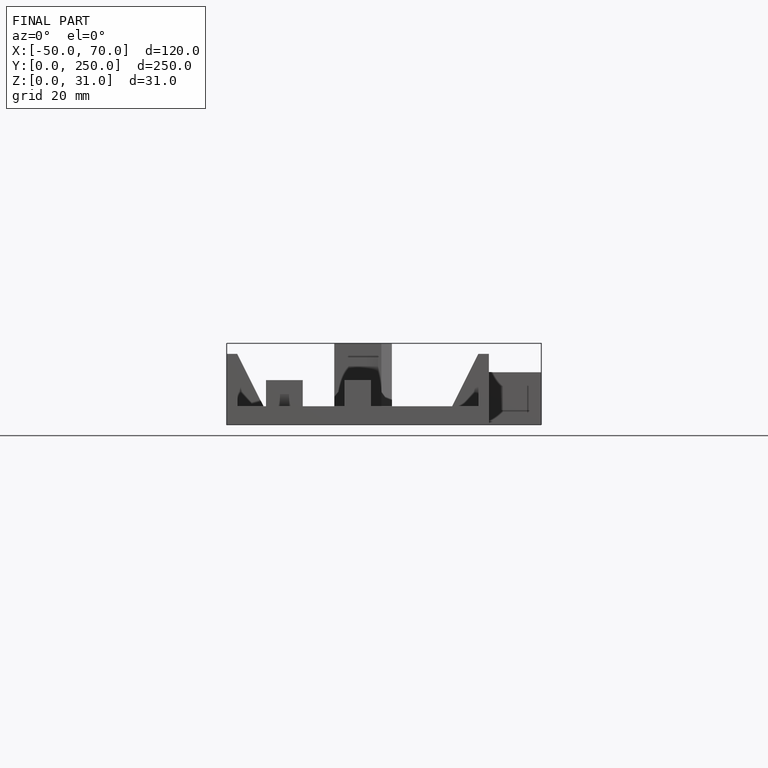
[diagram: finished part — front view with bounding-box wireframe]
